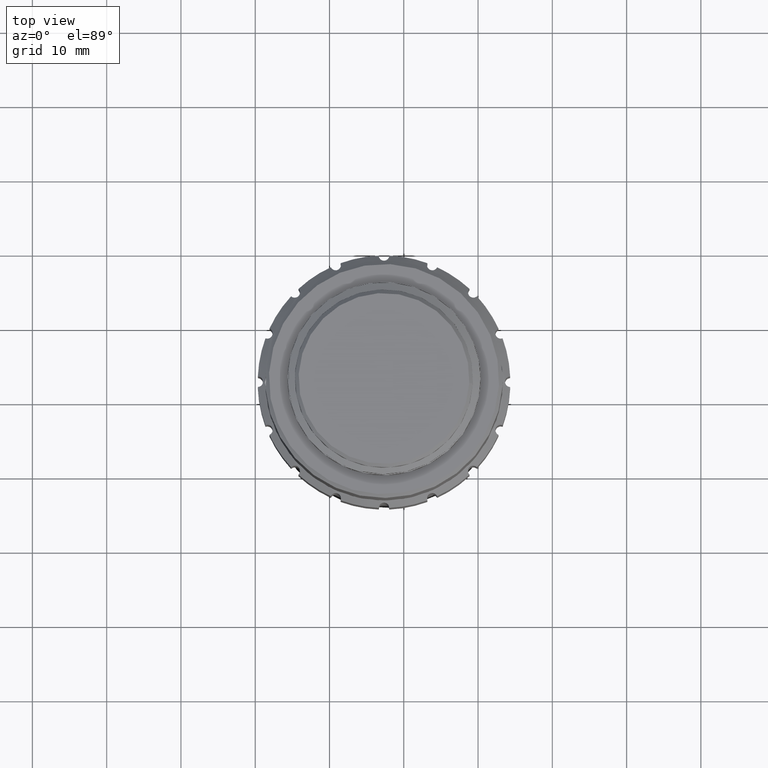
[diagram: clean part render]
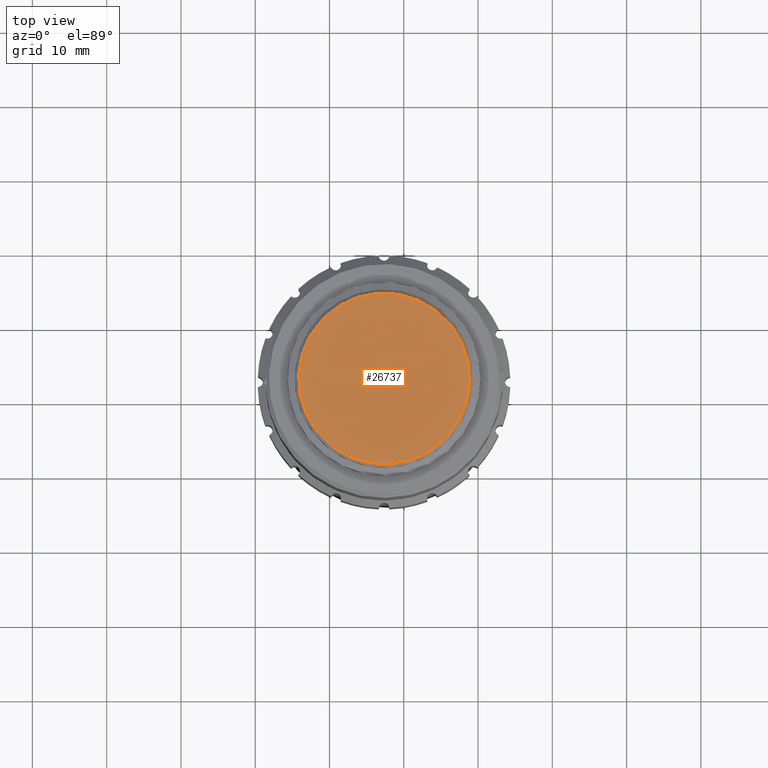
[diagram: same view with one face highlighted and labeled with its STEP entity id]
A machine part, top view. The second image highlights one B-rep face of the part: STEP entity #26737.
In plain terms, the highlighted planar face has unit normal (0, 0, 1).
Its self-contained STEP definition (entity closure, byte-faithful):
#2249 = DIRECTION ( 'NONE',  ( 0.000000000000000000, 0.000000000000000000, 1.000000000000000000 ) ) ;
#3106 = DIRECTION ( 'NONE',  ( 0.9984986589527603540, -0.05477616333350730782, 0.000000000000000000 ) ) ;
#3580 = AXIS2_PLACEMENT_3D ( 'NONE', #5175, #15276, #3106 ) ;
#4634 = AXIS2_PLACEMENT_3D ( 'NONE', #26101, #2249, #16933 ) ;
#5175 = CARTESIAN_POINT ( 'NONE',  ( -122.6630341068842824, 22.01530283243863906, 32.09225607790694568 ) ) ;
#5645 = PLANE ( 'NONE',  #3580 ) ;
#8361 = CARTESIAN_POINT ( 'NONE',  ( -111.1802995289275344, 21.38537695410330386, 32.09225607790694568 ) ) ;
#13728 = VERTEX_POINT ( 'NONE', #8361 ) ;
#14654 = FACE_OUTER_BOUND ( 'NONE', #23887, .T. ) ;
#15276 = DIRECTION ( 'NONE',  ( 0.000000000000000000, 0.000000000000000000, 1.000000000000000000 ) ) ;
#15780 = ORIENTED_EDGE ( 'NONE', *, *, #24847, .T. ) ;
#16933 = DIRECTION ( 'NONE',  ( 0.9984986589527603540, -0.05477616333350738415, 0.000000000000000000 ) ) ;
#17219 = CIRCLE ( 'NONE', #4634, 11.50000000000000178 ) ;
#23887 = EDGE_LOOP ( 'NONE', ( #15780 ) ) ;
#24847 = EDGE_CURVE ( 'NONE', #13728, #13728, #17219, .T. ) ;
#26101 = CARTESIAN_POINT ( 'NONE',  ( -122.6630341068842824, 22.01530283243863906, 32.09225607790694568 ) ) ;
#26737 = ADVANCED_FACE ( 'NONE', ( #14654 ), #5645, .T. ) ;